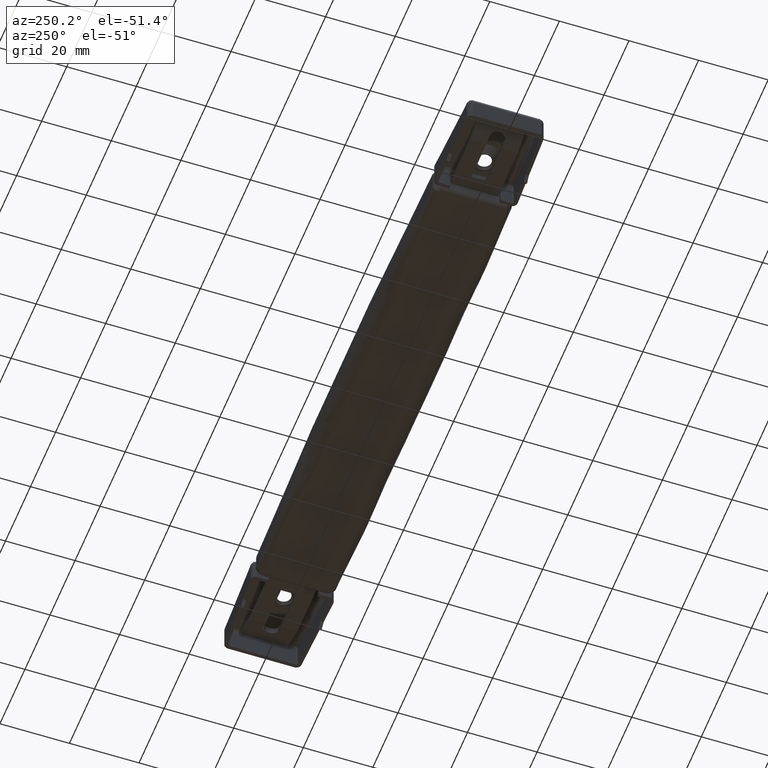
[diagram: clean part render]
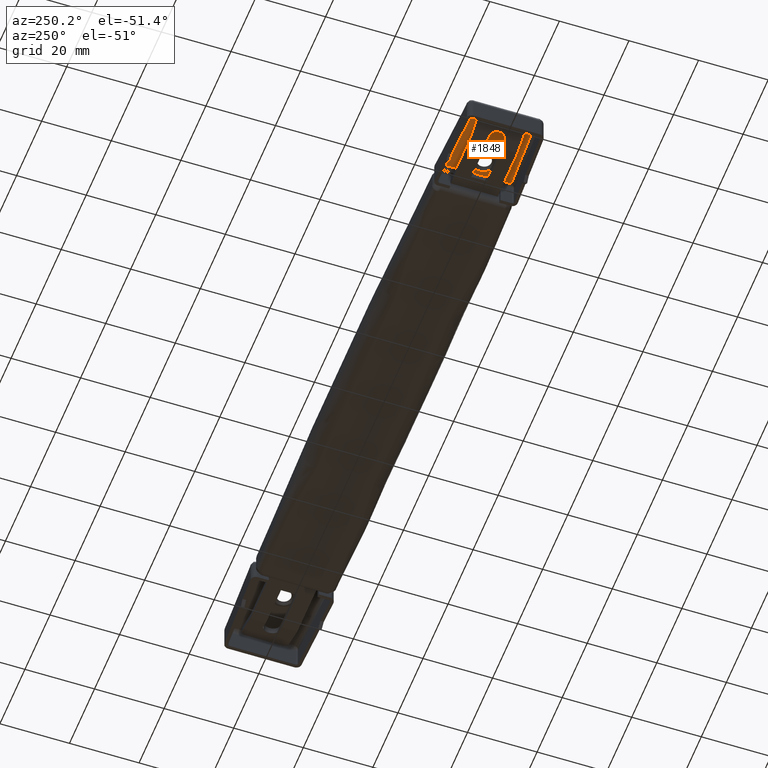
[diagram: same view with one face highlighted and labeled with its STEP entity id]
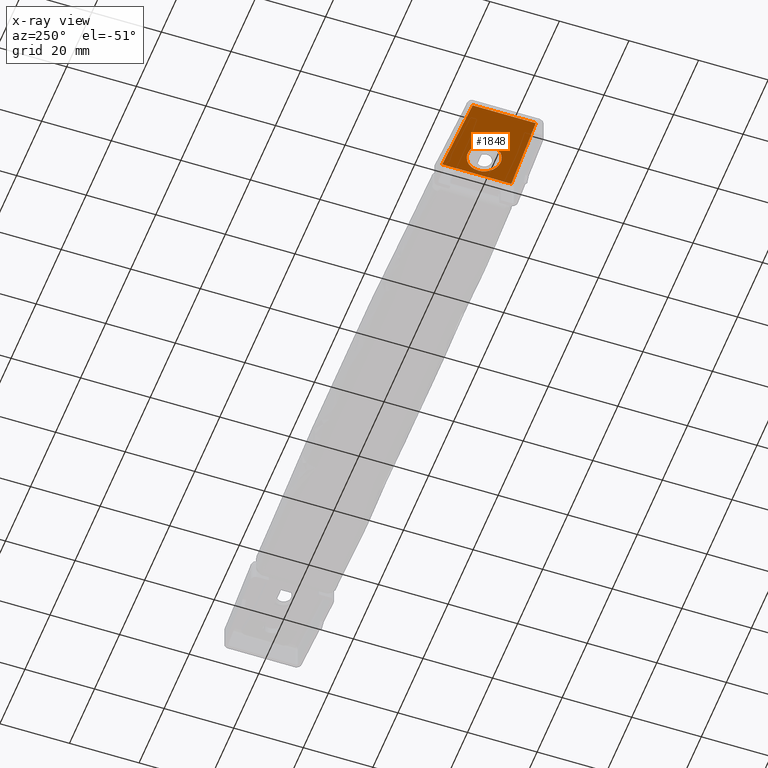
[diagram: x-ray of the same camera — body ghosted, the highlighted face saturated]
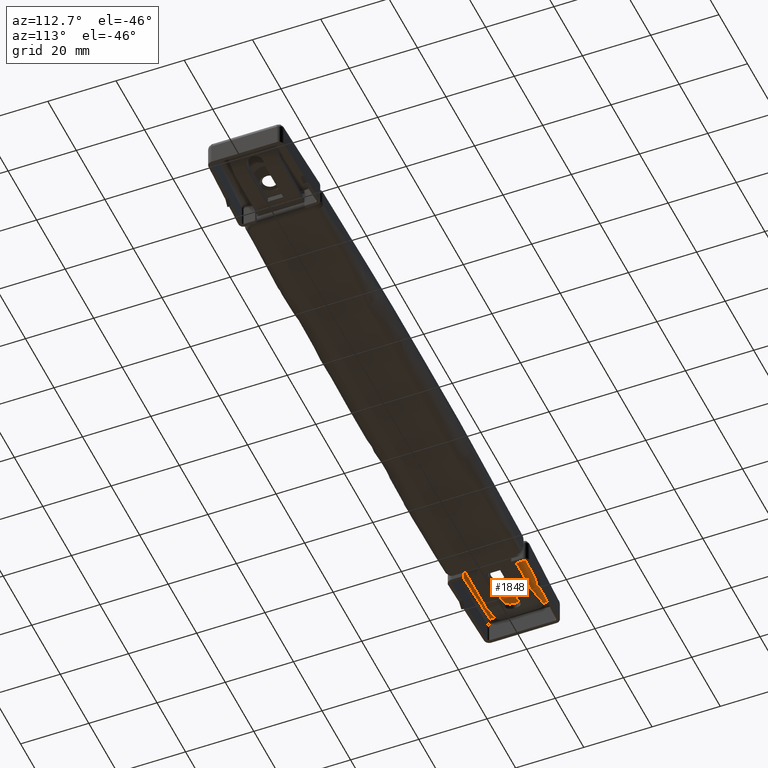
[diagram: same view with one face highlighted and labeled with its STEP entity id]
A machine part, auxiliary view. The second image highlights one B-rep face of the part: STEP entity #1848.
The next image is the same camera in x-ray: the body ghosted, the highlighted face saturated — about 0% of this face is hidden behind the body in this view.
A second angle (auxiliary view) of the same face is appended — the face is thin or edge-on in the first view.
In plain terms, the highlighted face is a freeform B-spline surface patch.
Its self-contained STEP definition (entity closure, byte-faithful):
#779=CARTESIAN_POINT('',(-79.958861245508615,-4.714034059882319,7.000000000338069));
#780=VERTEX_POINT('',#779);
#786=CARTESIAN_POINT('',(-84.714213562373189,7.894425E-016,6.999999999999901));
#787=VERTEX_POINT('',#786);
#788=CARTESIAN_POINT('',(-84.714213562373189,7.894425E-016,6.999999999999901));
#789=CARTESIAN_POINT('',(-84.714213562371739,-4.714213562540797,7.000000000167515));
#790=CARTESIAN_POINT('',(-79.999999999997073,-4.714213562709873,7.000000000336600));
#791=CARTESIAN_POINT('',(-79.979430231135908,-4.714213562710611,7.000000000337338));
#792=CARTESIAN_POINT('',(-79.958861245508615,-4.714034059882320,7.000000000338069));
#800=(BOUNDED_CURVE()B_SPLINE_CURVE(2,(#788,#789,#790,#791,#792),.UNSPECIFIED.,.F.,.U.)B_SPLINE_CURVE_WITH_KNOTS((3,2,3),(0.500000000000000,0.750000000000000,0.751539894428008),.UNSPECIFIED.)CURVE()GEOMETRIC_REPRESENTATION_ITEM()RATIONAL_B_SPLINE_CURVE((1.0,0.707106781186548,1.0,0.998195901457392,0.996414027885130))REPRESENTATION_ITEM(''));
#801=EDGE_CURVE('',#787,#780,#800,.T.);
#803=CARTESIAN_POINT('',(-80.041138754491399,4.714034059882321,7.000000000338069));
#804=VERTEX_POINT('',#803);
#805=CARTESIAN_POINT('',(-80.041138754491399,4.714034059882321,7.000000000338069));
#806=CARTESIAN_POINT('',(-84.714213562374681,4.673252751220475,7.000000000168982));
#807=CARTESIAN_POINT('',(-84.714213562373189,7.894425E-016,6.999999999999901));
#815=(BOUNDED_CURVE()B_SPLINE_CURVE(2,(#805,#806,#807),.UNSPECIFIED.,.F.,.U.)B_SPLINE_CURVE_WITH_KNOTS((3,3),(0.251539894428008,0.500000000000000),.UNSPECIFIED.)CURVE()GEOMETRIC_REPRESENTATION_ITEM()RATIONAL_B_SPLINE_CURVE((0.996414027885130,0.708910879729156,1.0))REPRESENTATION_ITEM(''));
#816=EDGE_CURVE('',#804,#787,#815,.T.);
#847=CARTESIAN_POINT('',(-75.285786437626811,7.894425E-016,6.999999999999901));
#848=VERTEX_POINT('',#847);
#849=CARTESIAN_POINT('',(-75.285786437626811,7.894425E-016,6.999999999999901));
#850=CARTESIAN_POINT('',(-75.285786437628275,4.714213562540798,7.000000000167515));
#851=CARTESIAN_POINT('',(-80.000000000002927,4.714213562709875,7.000000000336600));
#852=CARTESIAN_POINT('',(-80.020569768864107,4.714213562710612,7.000000000337337));
#853=CARTESIAN_POINT('',(-80.041138754491399,4.714034059882322,7.000000000338069));
#861=(BOUNDED_CURVE()B_SPLINE_CURVE(2,(#849,#850,#851,#852,#853),.UNSPECIFIED.,.F.,.U.)B_SPLINE_CURVE_WITH_KNOTS((3,2,3),(0.0,0.250000000000000,0.251539894428009),.UNSPECIFIED.)CURVE()GEOMETRIC_REPRESENTATION_ITEM()RATIONAL_B_SPLINE_CURVE((1.0,0.707106781186548,1.0,0.998195901457391,0.996414027885128))REPRESENTATION_ITEM(''));
#862=EDGE_CURVE('',#848,#804,#861,.T.);
#864=CARTESIAN_POINT('',(-79.958861245508615,-4.714034059882320,7.000000000338069));
#865=CARTESIAN_POINT('',(-75.285786437625347,-4.673252751220479,7.000000000168982));
#866=CARTESIAN_POINT('',(-75.285786437626811,7.894425E-016,6.999999999999901));
#874=(BOUNDED_CURVE()B_SPLINE_CURVE(2,(#864,#865,#866),.UNSPECIFIED.,.F.,.U.)B_SPLINE_CURVE_WITH_KNOTS((3,3),(0.751539894428008,1.0),.UNSPECIFIED.)CURVE()GEOMETRIC_REPRESENTATION_ITEM()RATIONAL_B_SPLINE_CURVE((0.996414027885130,0.708910879729156,1.0))REPRESENTATION_ITEM(''));
#875=EDGE_CURVE('',#780,#848,#874,.T.);
#1148=CARTESIAN_POINT('',(-96.0,9.075969921332749,6.999999999999901));
#1149=VERTEX_POINT('',#1148);
#1165=CARTESIAN_POINT('',(-96.0,-9.074990840627189,6.999999999999901));
#1166=VERTEX_POINT('',#1165);
#1167=CARTESIAN_POINT('',(-96.0,9.075969921332749,6.999999999999901));
#1168=CARTESIAN_POINT('',(-96.0,-9.074990840627189,6.999999999999901));
#1169=QUASI_UNIFORM_CURVE('',1,(#1167,#1168),.UNSPECIFIED.,.F.,.U.);
#1170=EDGE_CURVE('',#1149,#1166,#1169,.T.);
#1279=CARTESIAN_POINT('',(-74.0,9.921535138724162,6.999999999999901));
#1280=VERTEX_POINT('',#1279);
#1296=CARTESIAN_POINT('',(-74.0,9.921535138724162,6.999999999999901));
#1297=CARTESIAN_POINT('',(-96.0,9.075969921332749,6.999999999999901));
#1298=QUASI_UNIFORM_CURVE('',1,(#1296,#1297),.UNSPECIFIED.,.F.,.U.);
#1299=EDGE_CURVE('',#1280,#1149,#1298,.T.);
#1821=CARTESIAN_POINT('',(-72.901100042640266,-10.912672774836130,6.999999999999901));
#1822=CARTESIAN_POINT('',(-97.098900547445737,-10.912672774836130,6.999999999999901));
#1823=CARTESIAN_POINT('',(-72.901100042640266,10.912695866034669,6.999999999999901));
#1824=CARTESIAN_POINT('',(-97.098900547445737,10.912695866034669,6.999999999999901));
#1825=B_SPLINE_SURFACE_WITH_KNOTS('',1,1,((#1821,#1823),(#1822,#1824)),.UNSPECIFIED.,.F.,.F.,.U.,(2,2),(2,2),(0.0,24.197800504805471),(0.0,21.825368640870799),.UNSPECIFIED.);
#1826=ORIENTED_EDGE('',*,*,#1299,.F.);
#1827=CARTESIAN_POINT('',(-74.0,-9.921512579757639,6.999999999999901));
#1828=VERTEX_POINT('',#1827);
#1829=CARTESIAN_POINT('',(-74.0,-9.921512579757639,6.999999999999901));
#1830=CARTESIAN_POINT('',(-74.0,9.921535138724162,6.999999999999901));
#1831=QUASI_UNIFORM_CURVE('',1,(#1829,#1830),.UNSPECIFIED.,.F.,.U.);
#1832=EDGE_CURVE('',#1828,#1280,#1831,.T.);
#1833=ORIENTED_EDGE('',*,*,#1832,.F.);
#1834=CARTESIAN_POINT('',(-96.0,-9.074990840627189,6.999999999999901));
#1835=CARTESIAN_POINT('',(-74.0,-9.921512579757639,6.999999999999901));
#1836=QUASI_UNIFORM_CURVE('',1,(#1834,#1835),.UNSPECIFIED.,.F.,.U.);
#1837=EDGE_CURVE('',#1166,#1828,#1836,.T.);
#1838=ORIENTED_EDGE('',*,*,#1837,.F.);
#1839=ORIENTED_EDGE('',*,*,#1170,.F.);
#1840=EDGE_LOOP('',(#1826,#1833,#1838,#1839));
#1841=FACE_OUTER_BOUND('',#1840,.T.);
#1842=ORIENTED_EDGE('',*,*,#801,.T.);
#1843=ORIENTED_EDGE('',*,*,#875,.T.);
#1844=ORIENTED_EDGE('',*,*,#862,.T.);
#1845=ORIENTED_EDGE('',*,*,#816,.T.);
#1846=EDGE_LOOP('',(#1842,#1843,#1844,#1845));
#1847=FACE_BOUND('',#1846,.T.);
#1848=ADVANCED_FACE('',(#1841,#1847),#1825,.T.);